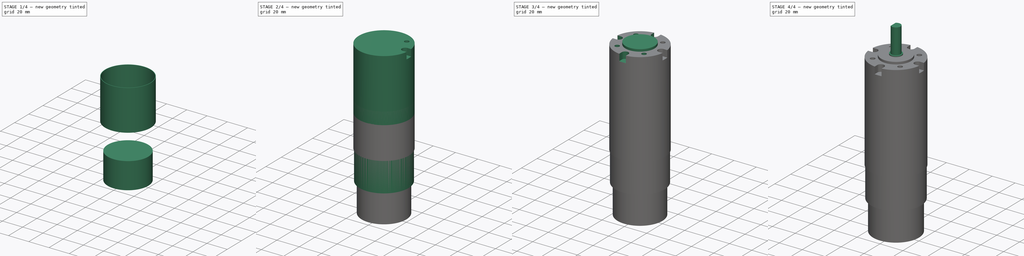
[diagram: build sequence overview — one tinted view per stage of 4, left to right]
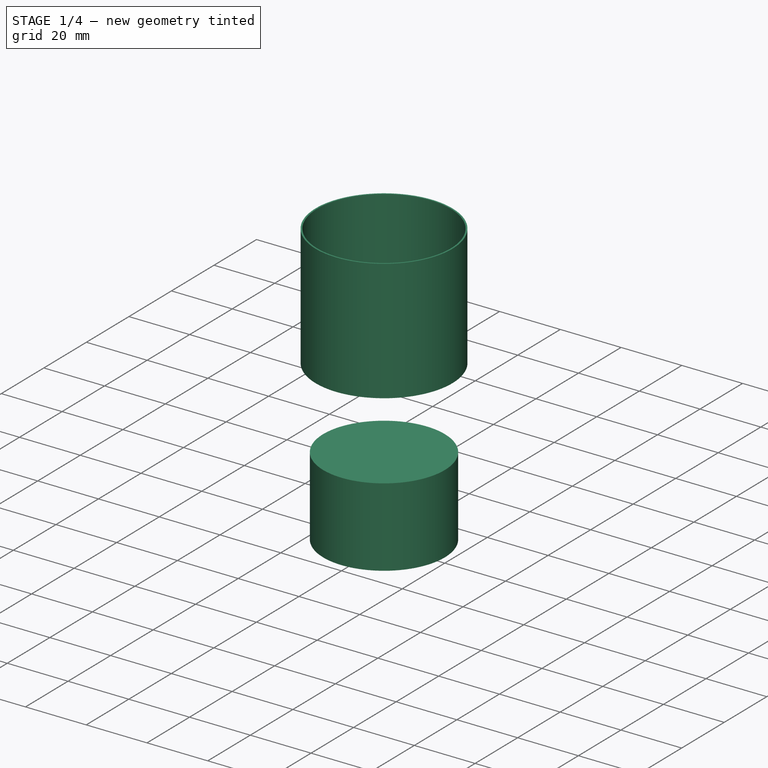
[diagram: stage 1 of 4 — iso view after this stage's code; geometry added in this stage tinted green]
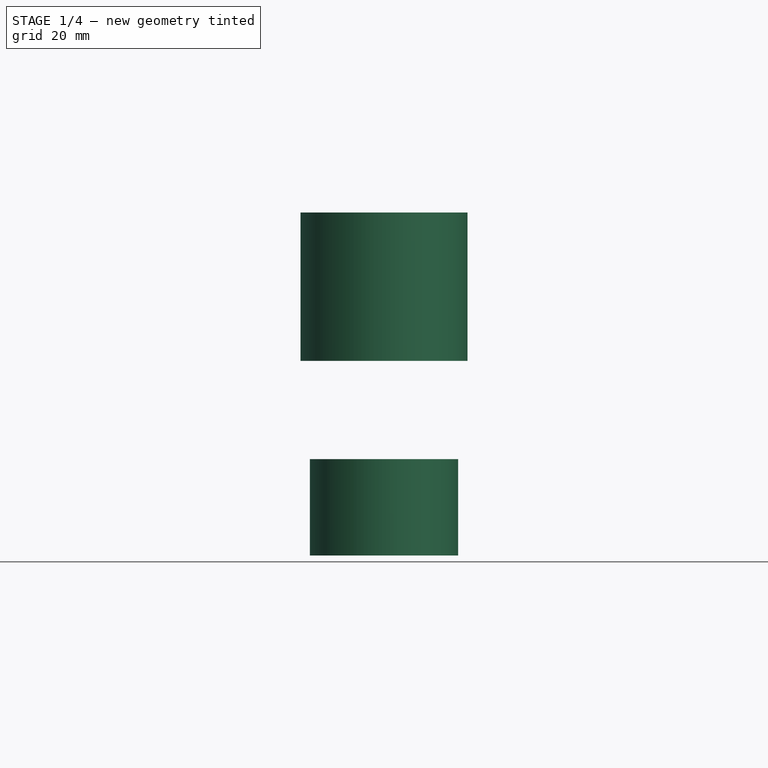
[diagram: stage 1 of 4 — front view after this stage's code; geometry added in this stage tinted green]
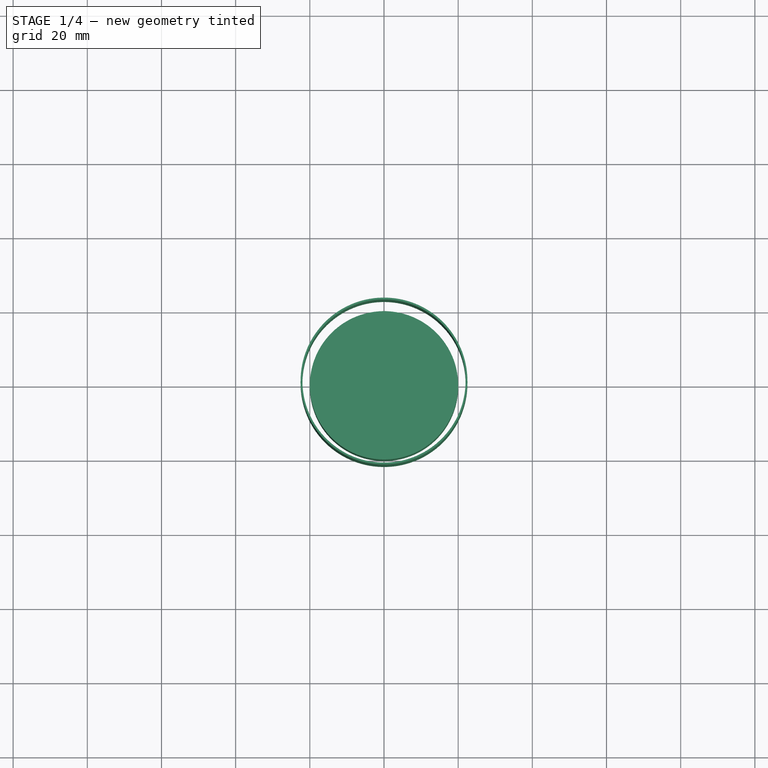
[diagram: stage 1 of 4 — top view after this stage's code; geometry added in this stage tinted green]
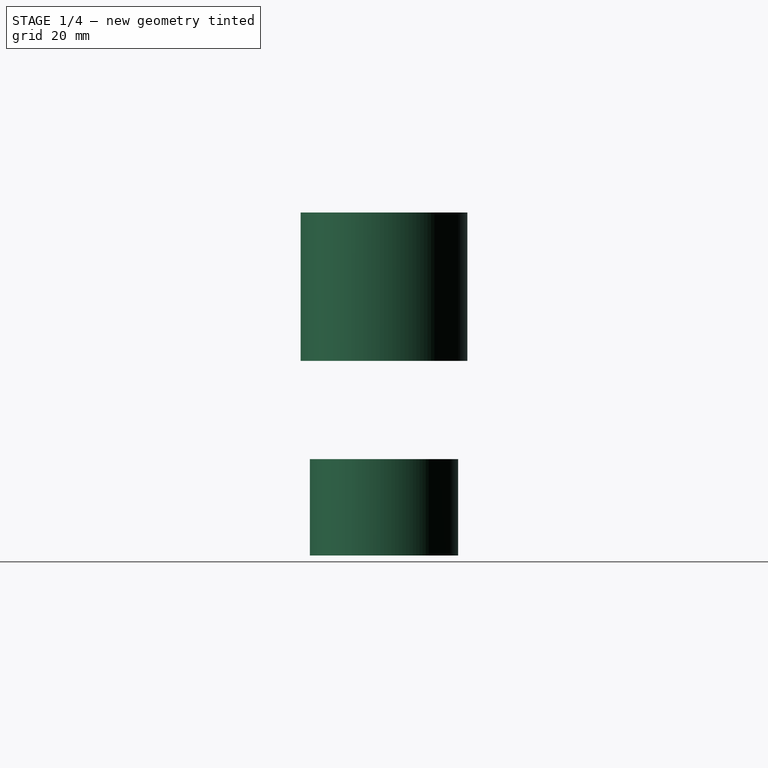
[diagram: stage 1 of 4 — right view after this stage's code; geometry added in this stage tinted green]
FCSTD DOCUMENT  (FreeCAD 1.0R39319 (Git))
Label: Motor-PG45
License: All rights reserved
LicenseURL: http://en.wikipedia.org/wiki/All_rights_reserved
objects: Sketcher::SketchObject×9, PartDesign::Pad×7, PartDesign::Body×4, PartDesign::ShapeBinder×3, PartDesign::Pocket×2, PartDesign::PolarPattern×1
note: 54 computed .brp shape members not serialized (recipe doc carries the construction recipe); baked Part::Feature solids carry a one-line shape summary decoded from their .brp

FEATURE [PartDesign::Body] Body001  label="Tengah"
  AllowCompound = false
  Group = -> [CopyPocket001,Sketch006,Pad004]
  Origin = -> Origin001
  Tip = -> Pad004
FEATURE [PartDesign::ShapeBinder] CopyPocket001001
  Placement = pos=(0,0,-45) rot=(0,0,1;0rad)
  TraceSupport = false
FEATURE [Sketcher::SketchObject] Sketch007
  ArcFitTolerance = 0
  AttachmentSupport = -> [CopyPocket001001]
  FullyConstrained = true
  MakeInternals = false
  MapMode = 5
  Placement = pos=(0,0,-45) rot=(1,0,0;3.14159rad)
  sketch-geometry (2):
    g0: Circle CenterX=0 CenterY=0 CenterZ=0 NormalX=0 NormalY=0 NormalZ=1 AngleXU=0 Radius=22.5
    g1: Circle CenterX=0 CenterY=0 CenterZ=0 NormalX=0 NormalY=0 NormalZ=1 AngleXU=0 Radius=22
  constraints (4):
    c: Coincident(g0,g-1)
    c: Coincident(g1,g0)
    c: Diameter(g1) = 44
    c: Diameter(g0) = 45
FEATURE [PartDesign::Pad] Pad005
  AllowMultiFace = false
  Direction = (0,0,-1)
  Length = 40
  Length2 = 100
  Placement = pos=(0,0,-45) rot=(0,0,1;0rad)
  Profile = -> Sketch007
  Suppressed = false
  Type = 0
FEATURE [PartDesign::Body] Body002  label="CoverMid"
  AllowCompound = false
  Group = -> [CopyPocket001001,Sketch007,Pad005]
  Origin = -> Origin002
  Placement = pos=(0,0,-17) rot=(0,0,1;0rad)
  Tip = -> Pad005
FEATURE [PartDesign::ShapeBinder] CopyPad004
  Placement = pos=(0,0,-66.5) rot=(0,0,1;0rad)
  TraceSupport = false
FEATURE [Sketcher::SketchObject] Sketch008
  ArcFitTolerance = 0
  AttachmentSupport = -> [CopyPad004]
  FullyConstrained = true
  MakeInternals = false
  MapMode = 5
  Placement = pos=(0,0,-111.5) rot=(1,0,0;3.14159rad)
  sketch-geometry (1):
    g0: Circle CenterX=0 CenterY=0 CenterZ=0 NormalX=0 NormalY=0 NormalZ=1 AngleXU=0 Radius=20
  constraints (2):
    c: Coincident(g0,g-1)
    c: Diameter(g0) = 40
FEATURE [PartDesign::Pad] Pad006
  AllowMultiFace = false
  Direction = (0,0,-1)
  Length = 26
  Length2 = 100
  Placement = pos=(0,0,-66.5) rot=(0,0,1;0rad)
  Profile = -> Sketch008
  Suppressed = false
  Type = 0
FEATURE [PartDesign::Body] Body003  label="Encoder"
  AllowCompound = false
  Group = -> [CopyPad004,Sketch008,Pad006]
  Origin = -> Origin003
  Tip = -> Pad006
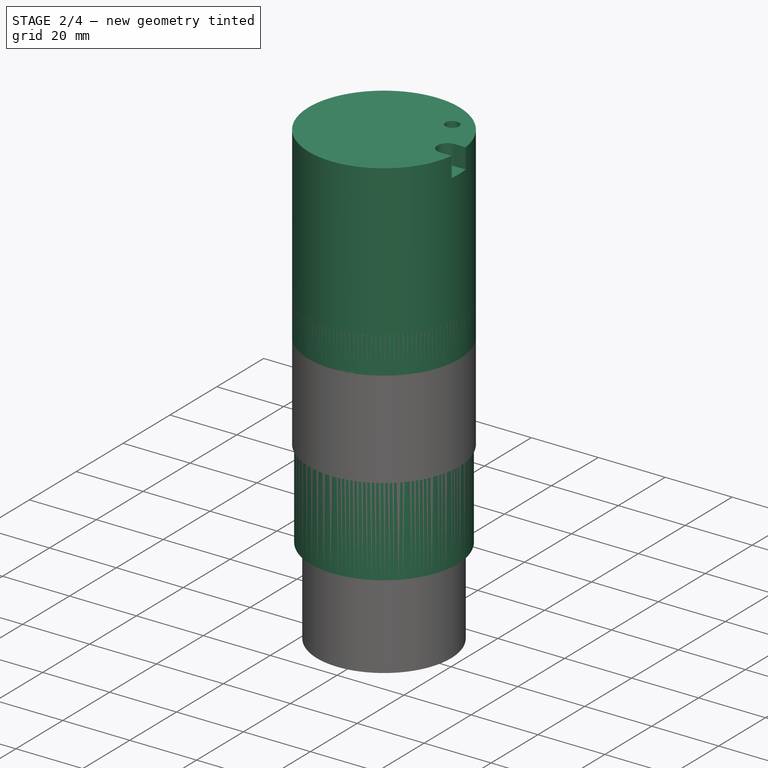
[diagram: stage 2 of 4 — iso view after this stage's code; geometry added in this stage tinted green]
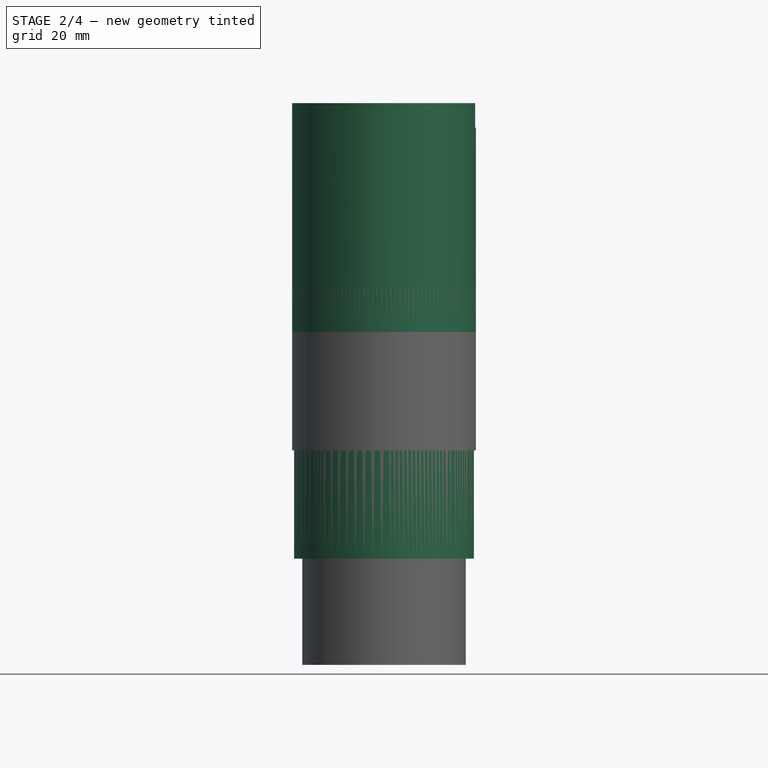
[diagram: stage 2 of 4 — front view after this stage's code; geometry added in this stage tinted green]
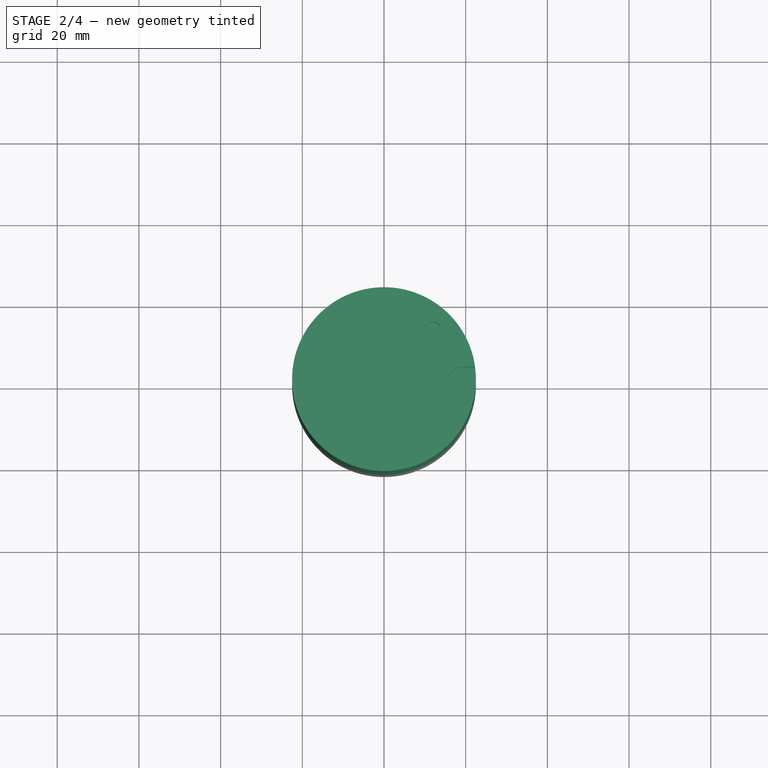
[diagram: stage 2 of 4 — top view after this stage's code; geometry added in this stage tinted green]
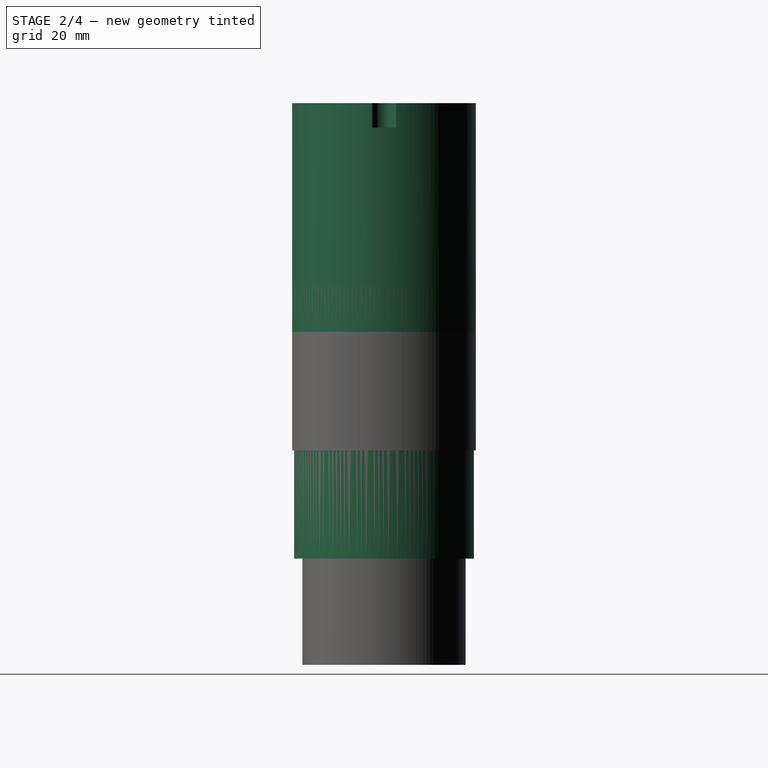
[diagram: stage 2 of 4 — right view after this stage's code; geometry added in this stage tinted green]
FEATURE [Sketcher::SketchObject] Sketch
  ArcFitTolerance = 0
  AttachmentSupport = -> [XY_Plane]
  FullyConstrained = true
  MakeInternals = false
  MapMode = 5
  sketch-geometry (1):
    g0: Circle CenterX=0 CenterY=0 CenterZ=0 NormalX=0 NormalY=0 NormalZ=1 AngleXU=0 Radius=22.5
  constraints (2):
    c: Coincident(g0,g-1)
    c: Diameter(g0) = 45
FEATURE [PartDesign::Pad] Pad
  AllowMultiFace = false
  Direction = (0,0,1)
  Length = 56
  Length2 = 100
  Profile = -> Sketch
  Reversed = true
  Suppressed = false
  Type = 0
FEATURE [Sketcher::SketchObject] Sketch001
  ArcFitTolerance = 0
  AttachmentSupport = -> [Pad]
  FullyConstrained = true
  MakeInternals = false
  MapMode = 5
  sketch-geometry (5):
    g0: Circle CenterX=12 CenterY=12 CenterZ=0 NormalX=0 NormalY=0 NormalZ=1 AngleXU=0 Radius=2
    g1: ArcOfCircle CenterX=19 CenterY=0 CenterZ=0 NormalX=0 NormalY=0 NormalZ=1 AngleXU=0 Radius=3 StartAngle=1.5708 EndAngle=4.71239
    g2: ArcOfCircle CenterX=22 CenterY=-3.682e-13 CenterZ=0 NormalX=0 NormalY=0 NormalZ=1 AngleXU=0 Radius=3 StartAngle=4.71239 EndAngle=7.85398
    g3: LineSegment StartX=19 StartY=-3 StartZ=0 EndX=22 EndY=-3 EndZ=0
    g4: LineSegment StartX=19 StartY=3 StartZ=0 EndX=22 EndY=3 EndZ=0
  constraints (13):
    c: Diameter(g0) = 4
    c: DistanceX(g0) = 12
    c: DistanceY(g0) = 12
    c: Tangent(g1,g4) = 1.5708
    c: Tangent(g1,g3) = -1.5708
    c: Tangent(g3,g2) = -1.5708
    c: Tangent(g4,g2) = 1.5708
    c: Horizontal(g3)
    c: Equal(g1,g2)
    c: PointOnObject(g1,g-1)
    c: Radius(g2) = 3
    c: DistanceX(g1,g2) = 3
    c: DistanceX(g1) = 19
FEATURE [PartDesign::Pocket] Pocket
  AllowMultiFace = false
  BaseFeature = -> Pad
  Direction = (0,0,-1)
  Length = 6
  Length2 = 100
  Profile = -> Sketch001
  Suppressed = false
  Type = 0
FEATURE [PartDesign::Body] Body  label="Depan"
  AllowCompound = false
  Group = -> [Sketch,Pad,Sketch001,Pocket,PolarPattern,Sketch002,Pad001,Sketch003,Pad002,Sketch004,Pad003,Sketch005,Pocket001]
  Origin = -> Origin
  Tip = -> Pocket001
FEATURE [PartDesign::ShapeBinder] CopyPocket001
  Placement = pos=(0,0,-45) rot=(0,0,1;0rad)
  TraceSupport = false
FEATURE [Sketcher::SketchObject] Sketch006
  ArcFitTolerance = 0
  AttachmentSupport = -> [CopyPocket001]
  FullyConstrained = true
  MakeInternals = false
  MapMode = 5
  Placement = pos=(0,0,-45) rot=(1,0,0;3.14159rad)
  sketch-geometry (1):
    g0: Circle CenterX=0 CenterY=0 CenterZ=0 NormalX=0 NormalY=0 NormalZ=1 AngleXU=0 Radius=22
  constraints (2):
    c: Coincident(g0,g-1)
    c: Diameter(g0) = 44
FEATURE [PartDesign::Pad] Pad004
  AllowMultiFace = false
  Direction = (0,0,-1)
  Length = 66.5
  Length2 = 100
  Placement = pos=(0,0,-45) rot=(0,0,1;0rad)
  Profile = -> Sketch006
  Suppressed = false
  Type = 0
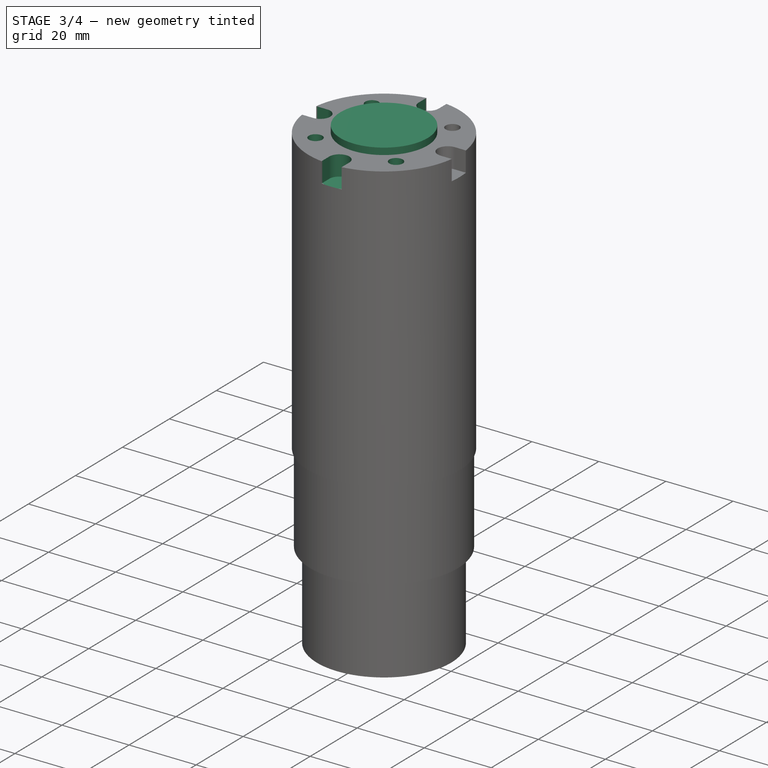
[diagram: stage 3 of 4 — iso view after this stage's code; geometry added in this stage tinted green]
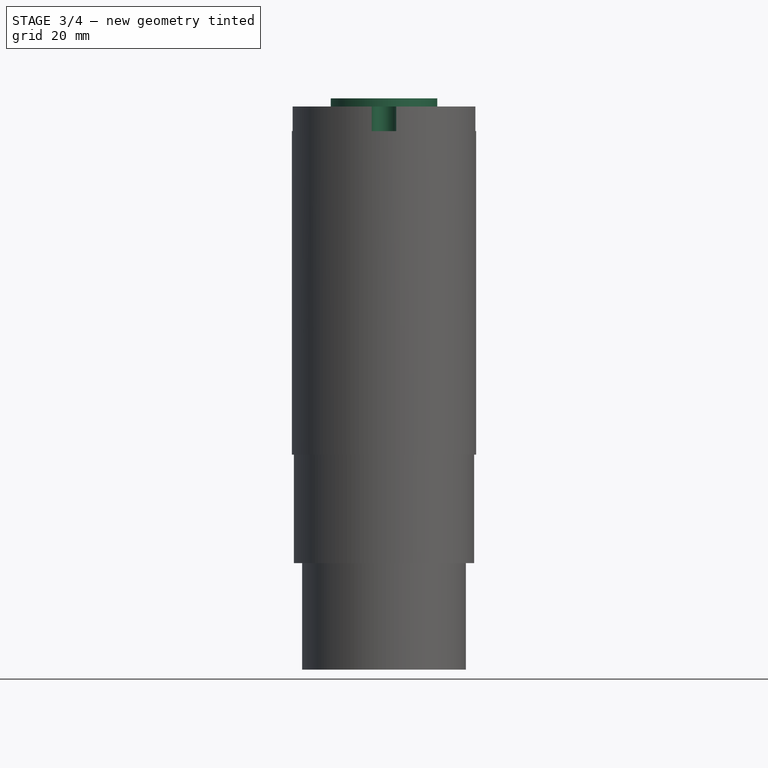
[diagram: stage 3 of 4 — front view after this stage's code; geometry added in this stage tinted green]
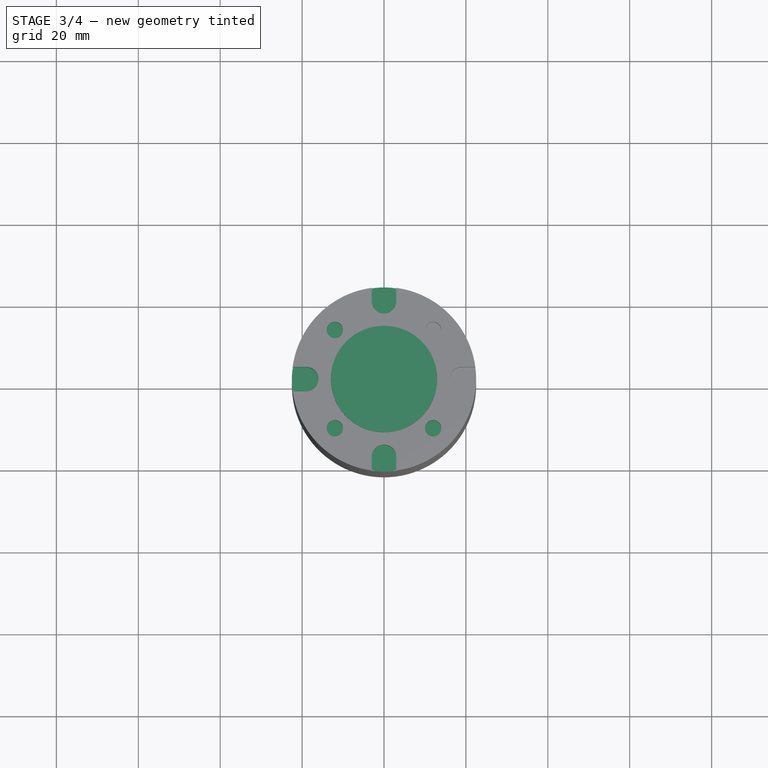
[diagram: stage 3 of 4 — top view after this stage's code; geometry added in this stage tinted green]
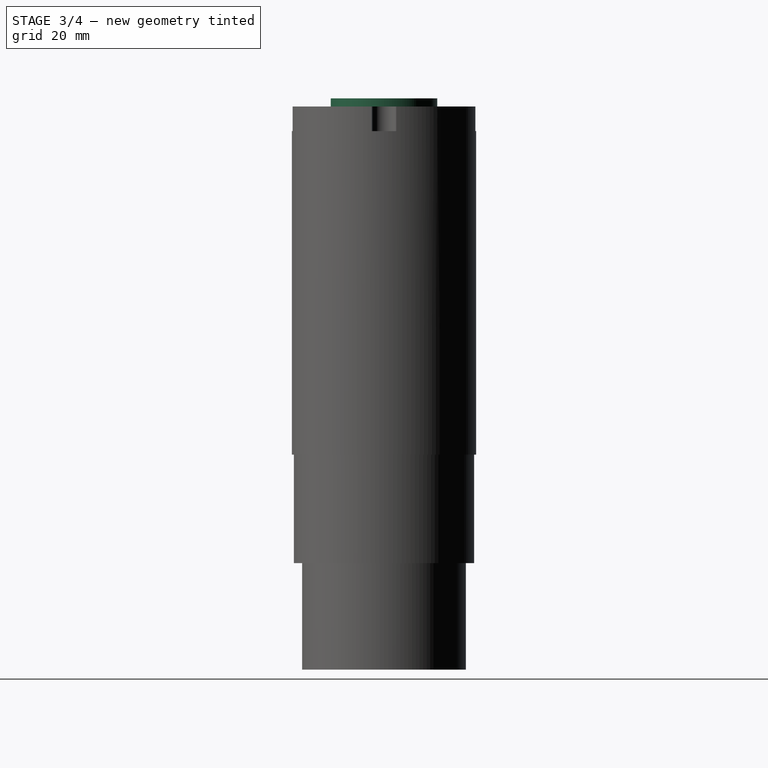
[diagram: stage 3 of 4 — right view after this stage's code; geometry added in this stage tinted green]
FEATURE [PartDesign::PolarPattern] PolarPattern
  Angle = 360
  Axis = -> Sketch001 [N_Axis]
  BaseFeature = -> Pocket
  Mode = 0
  Occurrences = 4
  Offset = 120
  Originals = -> [Pocket]
  Suppressed = false
  TransformMode = 0
FEATURE [Sketcher::SketchObject] Sketch002
  ArcFitTolerance = 0
  AttachmentSupport = -> [PolarPattern]
  FullyConstrained = true
  MakeInternals = false
  MapMode = 5
  sketch-geometry (1):
    g0: Circle CenterX=0 CenterY=0 CenterZ=0 NormalX=0 NormalY=0 NormalZ=1 AngleXU=0 Radius=13
  constraints (2):
    c: Coincident(g0,g-1)
    c: Diameter(g0) = 26
FEATURE [PartDesign::Pad] Pad001
  AllowMultiFace = false
  BaseFeature = -> PolarPattern
  Direction = (0,0,1)
  Length = 2
  Length2 = 100
  Profile = -> Sketch002
  Suppressed = false
  Type = 0
FEATURE [Sketcher::SketchObject] Sketch003
  ArcFitTolerance = 0
  AttachmentSupport = -> [Pad001]
  FullyConstrained = true
  MakeInternals = false
  MapMode = 5
  Placement = pos=(0,0,-6) rot=(0,0,1;0rad)
  sketch-geometry (1):
    g0: Circle CenterX=0 CenterY=0 CenterZ=0 NormalX=0 NormalY=0 NormalZ=1 AngleXU=0 Radius=5
  constraints (2):
    c: Coincident(g0,g-1)
    c: Diameter(g0) = 10
FEATURE [PartDesign::Pad] Pad002
  AllowMultiFace = false
  BaseFeature = -> Pad001
  Direction = (0,0,1)
  Length = 1
  Length2 = 100
  Profile = -> Sketch003
  Suppressed = false
  Type = 0
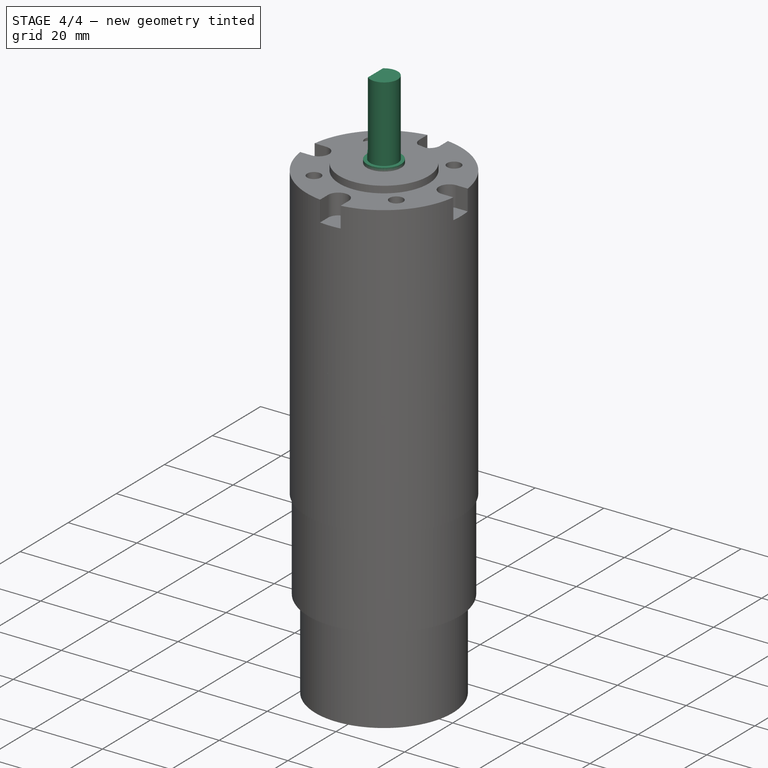
[diagram: stage 4 of 4 — iso view after this stage's code; geometry added in this stage tinted green]
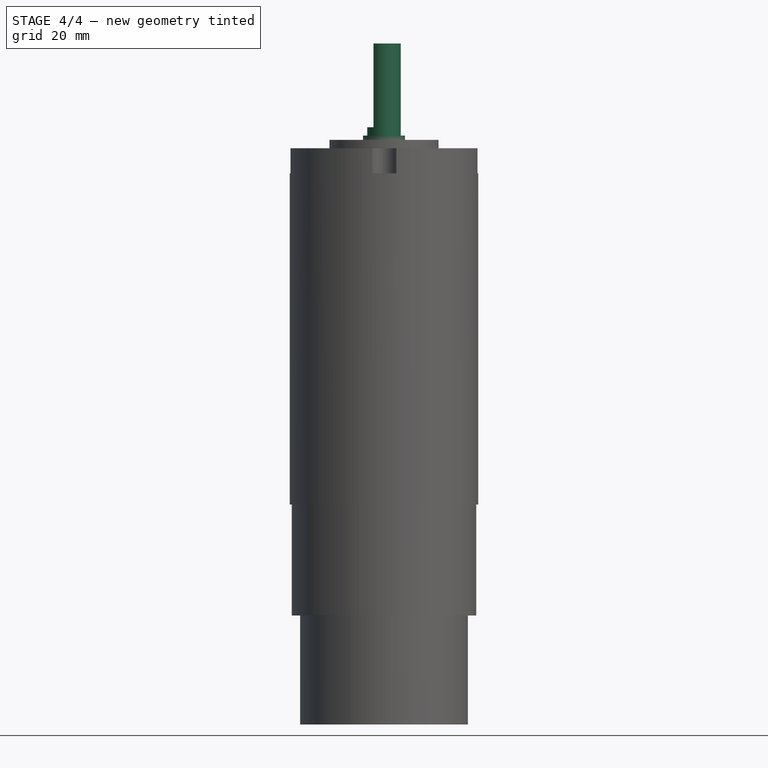
[diagram: stage 4 of 4 — front view after this stage's code; geometry added in this stage tinted green]
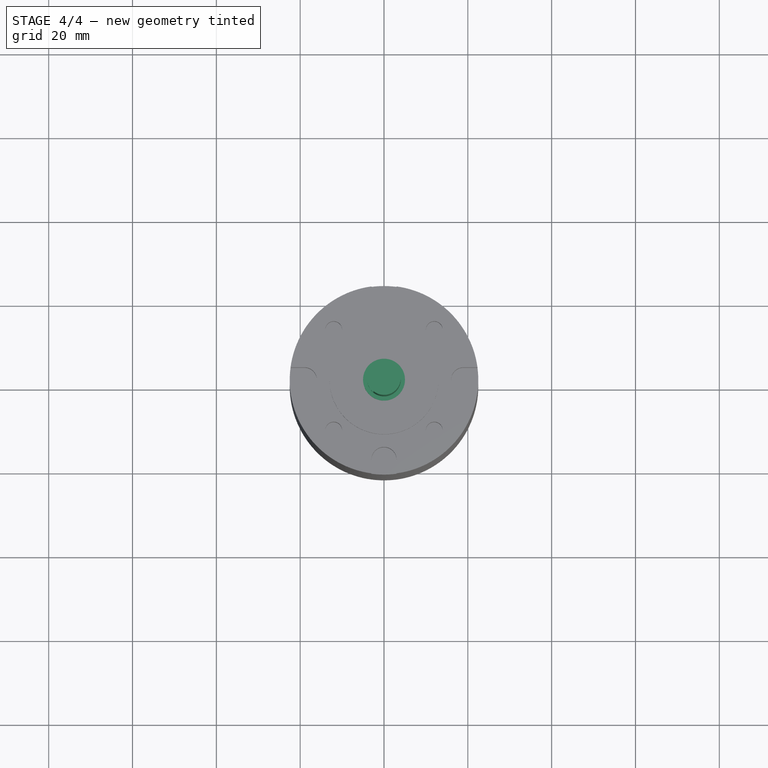
[diagram: stage 4 of 4 — top view after this stage's code; geometry added in this stage tinted green]
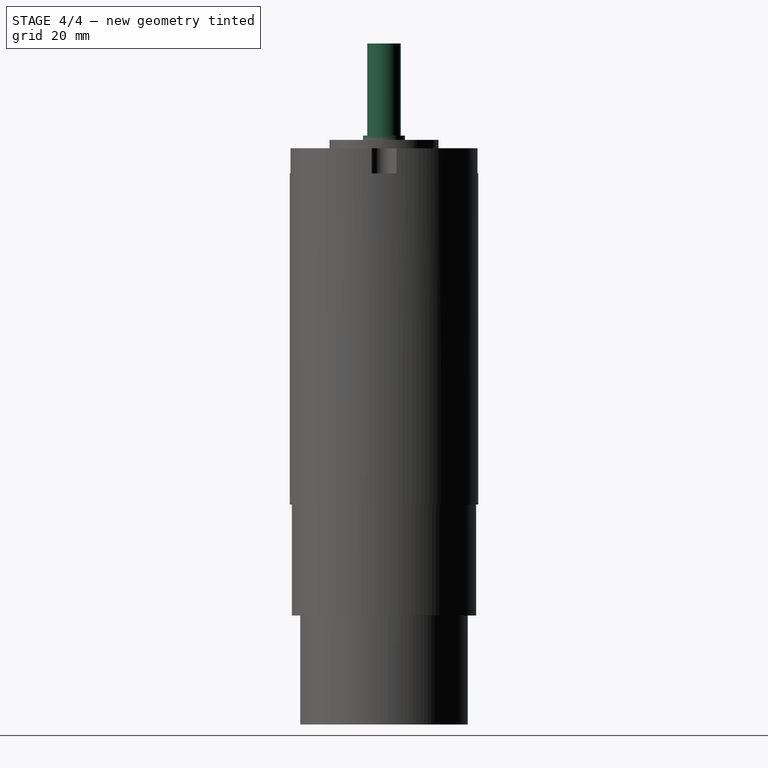
[diagram: stage 4 of 4 — right view after this stage's code; geometry added in this stage tinted green]
FEATURE [Sketcher::SketchObject] Sketch004
  ArcFitTolerance = 0
  AttachmentSupport = -> [Pad002]
  FullyConstrained = false
  MakeInternals = false
  MapMode = 5
  Placement = pos=(0,0,3) rot=(0,0,1;0rad)
  sketch-geometry (1):
    g0: Circle CenterX=0 CenterY=0 CenterZ=0 NormalX=0 NormalY=0 NormalZ=1 AngleXU=0 Radius=4
  constraints (2):
    c: Coincident(g0,g-1)
    c: Diameter(g0) = 8
FEATURE [PartDesign::Pad] Pad003
  AllowMultiFace = false
  BaseFeature = -> Pad002
  Direction = (1,1,1)
  Length = 22
  Length2 = 100
  Profile = -> Sketch004
  Suppressed = false
  Type = 0
FEATURE [Sketcher::SketchObject] Sketch005
  ArcFitTolerance = 0
  AttachmentSupport = -> [Pad003]
  FullyConstrained = false
  MakeInternals = false
  MapMode = 5
  Placement = pos=(0,0,25) rot=(0,0,1;0rad)
  sketch-geometry (4):
    g0: LineSegment StartX=-7.5 StartY=6 StartZ=0 EndX=-2.5 EndY=6 EndZ=0
    g1: LineSegment StartX=-2.5 StartY=6 StartZ=0 EndX=-2.5 EndY=-6 EndZ=0
    g2: LineSegment StartX=-2.5 StartY=-6 StartZ=0 EndX=-7.5 EndY=-6 EndZ=0
    g3: LineSegment StartX=-7.5 StartY=-6 StartZ=0 EndX=-7.5 EndY=6 EndZ=0
  constraints (11):
    c: Coincident(g0,g1)
    c: Coincident(g1,g2)
    c: Coincident(g2,g3)
    c: Coincident(g3,g0)
    c: Horizontal(g0)
    c: Horizontal(g2)
    c: Vertical(g3)
    c: DistanceX(g1,g-1) = 2.5
    c: Symmetric(g1,g0,g-1)
    c: DistanceY(g3,g3) = 12
    c: DistanceX(g2,g2) = 5
FEATURE [PartDesign::Pocket] Pocket001
  AllowMultiFace = false
  BaseFeature = -> Pad003
  Direction = (1,1,1)
  Length = 20
  Length2 = 100
  Profile = -> Sketch005
  Suppressed = false
  Type = 0
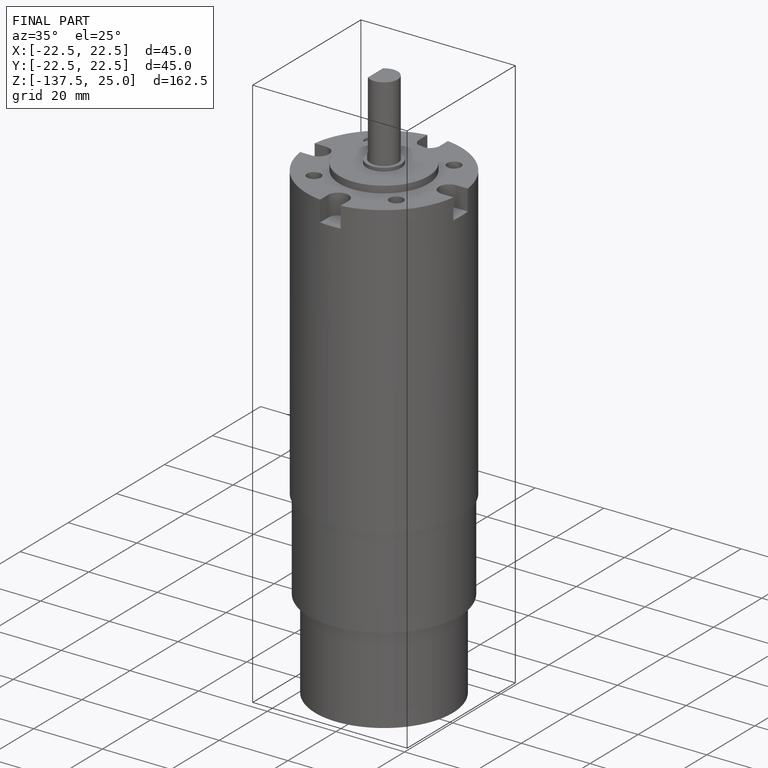
[diagram: finished part — iso view with bounding-box wireframe]
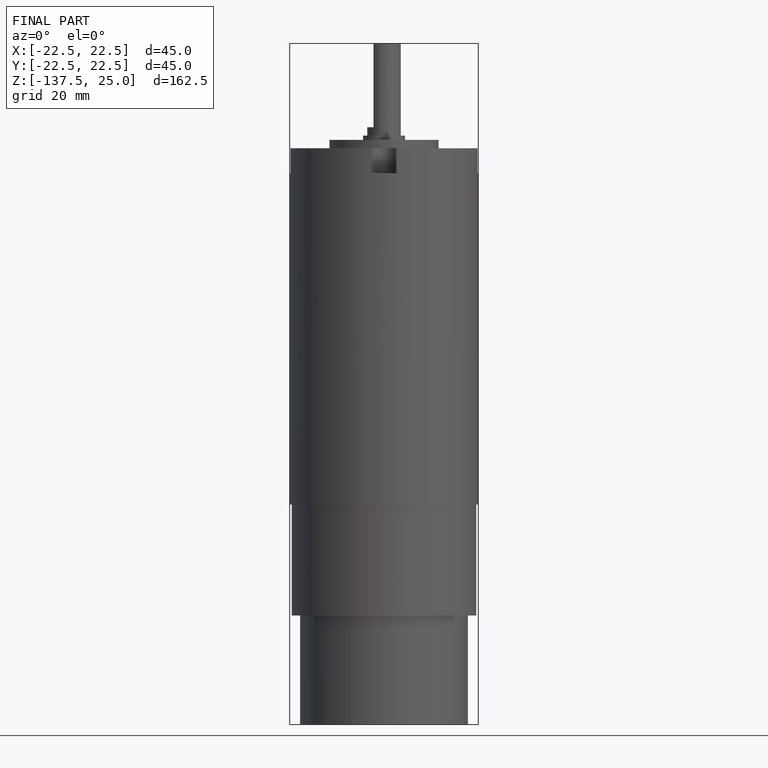
[diagram: finished part — front view with bounding-box wireframe]
